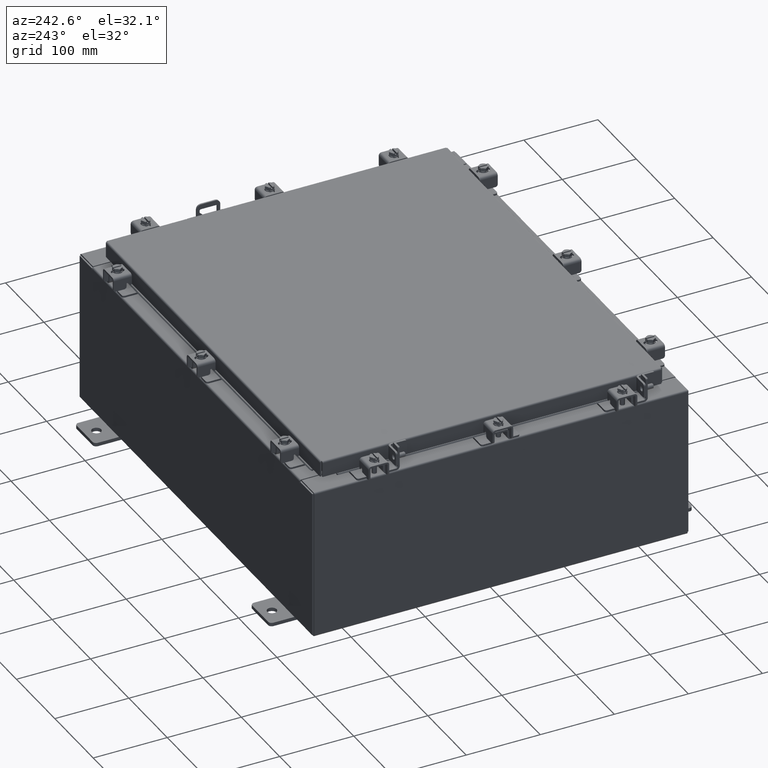
[diagram: clean part render]
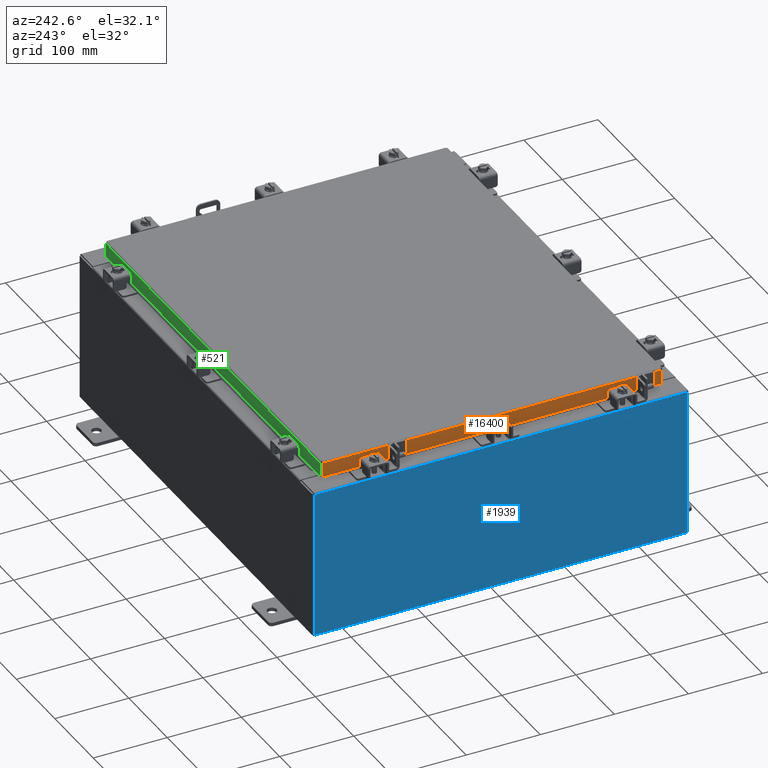
[diagram: same view with three faces highlighted in distinct colors, each labeled with its STEP entity id]
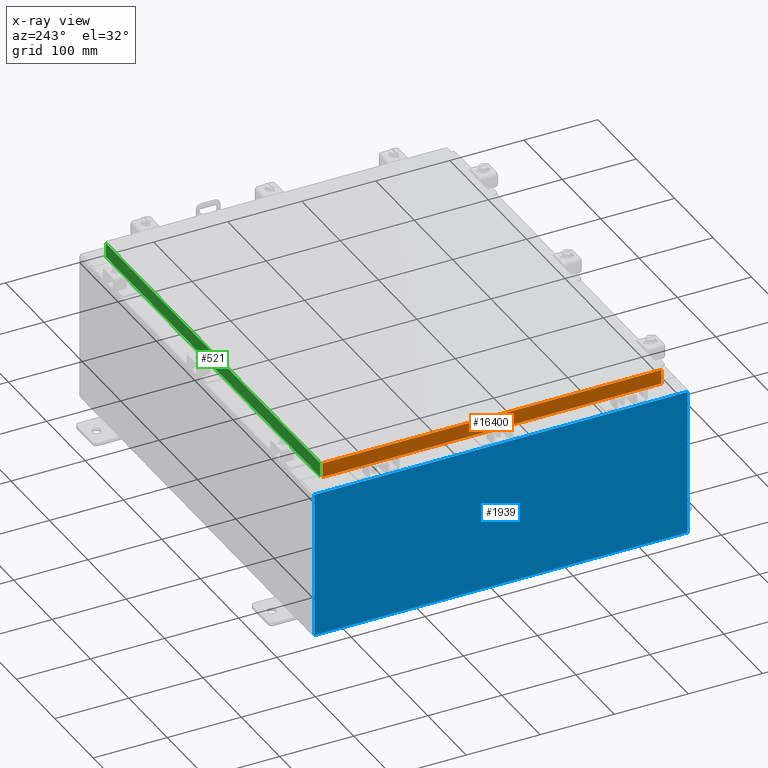
[diagram: x-ray of the same camera — body ghosted, the three highlighted faces saturated]
A machine part, auxiliary view with three faces highlighted in distinct colors.
The next image is the same camera in x-ray (body ghosted, the three faces saturated) — at least one of them is partly hidden behind the body in this view.
Their STEP definitions:

[orange] entity #16400 — the highlighted planar face has unit normal (1, 0, -0).
#255 = ORIENTED_EDGE ( 'NONE', *, *, #4518, .F. ) ;
#440 = AXIS2_PLACEMENT_3D ( 'NONE', #10978, #16217, #5764 ) ;
#517 = PLANE ( 'NONE',  #440 ) ;
#627 = DIRECTION ( 'NONE',  ( -2.818880942772360100E-015, 6.982962677686265900E-015, -1.000000000000000000 ) ) ;
#1144 = EDGE_CURVE ( 'NONE', #1811, #8649, #17397, .T. ) ;
#1471 = CARTESIAN_POINT ( 'NONE',  ( -11.07799999999999900, -8.255157864376263500, -0.8500000000000028600 ) ) ;
#1579 = CARTESIAN_POINT ( 'NONE',  ( -11.07799999999999900, -8.255157864376263500, -0.8500000000000028600 ) ) ;
#1811 = VERTEX_POINT ( 'NONE', #10610 ) ;
#1998 = ORIENTED_EDGE ( 'NONE', *, *, #2002, .F. ) ;
#2002 = EDGE_CURVE ( 'NONE', #8649, #21405, #20650, .T. ) ;
#2373 = DIRECTION ( 'NONE',  ( 4.379057701015054300E-047, 1.000000000000000000, 1.201604571657912400E-016 ) ) ;
#3364 = VERTEX_POINT ( 'NONE', #1579 ) ;
#3969 = CARTESIAN_POINT ( 'NONE',  ( -11.07799999999999800, -9.005157864376267100, -0.07469999999999978000 ) ) ;
#4017 = CARTESIAN_POINT ( 'NONE',  ( -11.07799999999999900, 9.005157864376274200, -0.8499999999999975400 ) ) ;
#4119 = CARTESIAN_POINT ( 'NONE',  ( -11.07799999999999900, -9.093999999999999400, -0.8499999999999996400 ) ) ;
#4518 = EDGE_CURVE ( 'NONE', #21405, #3364, #6624, .T. ) ;
#4867 = EDGE_CURVE ( 'NONE', #3364, #13296, #10992, .T. ) ;
#5764 = DIRECTION ( 'NONE',  ( -2.818880942772360100E-015, 0.0000000000000000000, -1.000000000000000000 ) ) ;
#6000 = EDGE_CURVE ( 'NONE', #1811, #10412, #9313, .T. ) ;
#6286 = CARTESIAN_POINT ( 'NONE',  ( -11.07799999999999900, -9.093999999999999400, -0.8499999999999996400 ) ) ;
#6624 = LINE ( 'NONE', #4119, #20004 ) ;
#7523 = VECTOR ( 'NONE', #16753, 39.37007874015748100 ) ;
#7632 = EDGE_CURVE ( 'NONE', #13296, #10412, #21436, .T. ) ;
#7831 = VECTOR ( 'NONE', #18748, 39.37007874015748100 ) ;
#8526 = CARTESIAN_POINT ( 'NONE',  ( -11.07799999999999800, -9.005157864376265300, -0.08770000000000007000 ) ) ;
#8649 = VERTEX_POINT ( 'NONE', #8526 ) ;
#9313 = LINE ( 'NONE', #14600, #13417 ) ;
#9718 = ORIENTED_EDGE ( 'NONE', *, *, #6000, .T. ) ;
#10092 = DIRECTION ( 'NONE',  ( 3.387180227794633400E-031, -1.000000000000000000, -9.232666117091638000E-046 ) ) ;
#10142 = FACE_OUTER_BOUND ( 'NONE', #12691, .T. ) ;
#10160 = DIRECTION ( 'NONE',  ( -0.0000000000000000000, 1.000000000000000000, -0.0000000000000000000 ) ) ;
#10337 = CARTESIAN_POINT ( 'NONE',  ( -11.07799999999999900, -9.005157864376261800, -0.8499999999999996400 ) ) ;
#10412 = VERTEX_POINT ( 'NONE', #4017 ) ;
#10610 = CARTESIAN_POINT ( 'NONE',  ( -11.07799999999999800, 9.005157864376270600, -0.08770000000000007000 ) ) ;
#10978 = CARTESIAN_POINT ( 'NONE',  ( -11.07799999999999800, -3.752318256350894000E-030, 3.148837674004378400E-014 ) ) ;
#10992 = LINE ( 'NONE', #1471, #19173 ) ;
#11299 = ORIENTED_EDGE ( 'NONE', *, *, #7632, .F. ) ;
#12691 = EDGE_LOOP ( 'NONE', ( #19156, #9718, #11299, #22106, #255, #1998 ) ) ;
#12782 = VECTOR ( 'NONE', #10092, 39.37007874015748100 ) ;
#13296 = VERTEX_POINT ( 'NONE', #16604 ) ;
#13417 = VECTOR ( 'NONE', #627, 39.37007874015748100 ) ;
#14600 = CARTESIAN_POINT ( 'NONE',  ( -11.07799999999999800, 9.005157864376270600, 9.437105801365624700E-014 ) ) ;
#16217 = DIRECTION ( 'NONE',  ( 1.000000000000000000, 3.387180227794633400E-031, -2.818880942772360100E-015 ) ) ;
#16400 = ADVANCED_FACE ( 'NONE', ( #10142 ), #517, .F. ) ;
#16604 = CARTESIAN_POINT ( 'NONE',  ( -11.07799999999999900, 8.255157864376267100, -0.8500000000000028600 ) ) ;
#16753 = DIRECTION ( 'NONE',  ( 4.379057701015054300E-047, 1.000000000000000000, 1.201604571657912400E-016 ) ) ;
#17397 = LINE ( 'NONE', #22007, #12782 ) ;
#18748 = DIRECTION ( 'NONE',  ( -2.818880942772360100E-015, 6.982962677686265900E-015, -1.000000000000000000 ) ) ;
#19156 = ORIENTED_EDGE ( 'NONE', *, *, #1144, .F. ) ;
#19173 = VECTOR ( 'NONE', #10160, 39.37007874015748100 ) ;
#20004 = VECTOR ( 'NONE', #2373, 39.37007874015748100 ) ;
#20650 = LINE ( 'NONE', #3969, #7831 ) ;
#21405 = VERTEX_POINT ( 'NONE', #10337 ) ;
#21436 = LINE ( 'NONE', #6286, #7523 ) ;
#22007 = CARTESIAN_POINT ( 'NONE',  ( -11.07799999999999800, -9.093999999999999400, -0.08770000000000007000 ) ) ;
#22106 = ORIENTED_EDGE ( 'NONE', *, *, #4867, .F. ) ;

[blue] entity #1939 — the highlighted planar face has unit normal (1, 0, 0).
#231 = DIRECTION ( 'NONE',  ( -3.584876173029202900E-015, -2.757597056176310300E-016, 1.000000000000000000 ) ) ;
#403 = CARTESIAN_POINT ( 'NONE',  ( -12.00000000000003200, -9.925300000000000000, 7.837599999999999200 ) ) ;
#538 = DIRECTION ( 'NONE',  ( 3.584876173029202900E-015, 2.757597056176310300E-016, -1.000000000000000000 ) ) ;
#653 = CARTESIAN_POINT ( 'NONE',  ( -12.00000000000003200, -9.925300000000000000, 7.837599999999999200 ) ) ;
#902 = VERTEX_POINT ( 'NONE', #403 ) ;
#1250 = ORIENTED_EDGE ( 'NONE', *, *, #20825, .F. ) ;
#1939 = ADVANCED_FACE ( 'NONE', ( #9482 ), #8670, .F. ) ;
#2220 = ORIENTED_EDGE ( 'NONE', *, *, #12260, .T. ) ;
#2845 = VECTOR ( 'NONE', #538, 39.37007874015748100 ) ;
#3022 = EDGE_CURVE ( 'NONE', #902, #15559, #9958, .T. ) ;
#5899 = DIRECTION ( 'NONE',  ( 0.0000000000000000000, 1.000000000000000000, 0.0000000000000000000 ) ) ;
#7451 = LINE ( 'NONE', #9239, #2845 ) ;
#8120 = ORIENTED_EDGE ( 'NONE', *, *, #11668, .T. ) ;
#8670 = PLANE ( 'NONE',  #22512 ) ;
#9239 = CARTESIAN_POINT ( 'NONE',  ( -12.00000000000000400, 9.925300000000000000, -4.054232992619534800E-014 ) ) ;
#9482 = FACE_OUTER_BOUND ( 'NONE', #10704, .T. ) ;
#9517 = CARTESIAN_POINT ( 'NONE',  ( -12.00000000000000400, 9.925300000000000000, 0.01299999999999983600 ) ) ;
#9958 = LINE ( 'NONE', #653, #18686 ) ;
#10131 = DIRECTION ( 'NONE',  ( 3.584876173029202900E-015, 0.0000000000000000000, -1.000000000000000000 ) ) ;
#10515 = VERTEX_POINT ( 'NONE', #19944 ) ;
#10704 = EDGE_LOOP ( 'NONE', ( #13314, #8120, #1250, #2220 ) ) ;
#11574 = LINE ( 'NONE', #14179, #15636 ) ;
#11668 = EDGE_CURVE ( 'NONE', #15559, #22411, #7451, .T. ) ;
#12260 = EDGE_CURVE ( 'NONE', #10515, #902, #11574, .T. ) ;
#12330 = DIRECTION ( 'NONE',  ( -0.0000000000000000000, 1.000000000000000000, -0.0000000000000000000 ) ) ;
#12718 = LINE ( 'NONE', #19277, #21412 ) ;
#13314 = ORIENTED_EDGE ( 'NONE', *, *, #3022, .T. ) ;
#14179 = CARTESIAN_POINT ( 'NONE',  ( -12.00000000000000400, -9.925300000000000000, -4.601632553852869700E-014 ) ) ;
#15559 = VERTEX_POINT ( 'NONE', #16773 ) ;
#15636 = VECTOR ( 'NONE', #231, 39.37007874015748100 ) ;
#16773 = CARTESIAN_POINT ( 'NONE',  ( -12.00000000000003200, 9.925299999999996500, 7.837599999999999200 ) ) ;
#16899 = DIRECTION ( 'NONE',  ( 1.000000000000000000, 0.0000000000000000000, 3.584876173029202900E-015 ) ) ;
#18686 = VECTOR ( 'NONE', #5899, 39.37007874015748100 ) ;
#18855 = CARTESIAN_POINT ( 'NONE',  ( -12.00000000000000400, 0.0000000000000000000, -4.327932773236202500E-014 ) ) ;
#19277 = CARTESIAN_POINT ( 'NONE',  ( -12.00000000000000400, 9.925299999999998200, 0.01299999999999984700 ) ) ;
#19944 = CARTESIAN_POINT ( 'NONE',  ( -12.00000000000000400, -9.925299999999998200, 0.01299999999999984700 ) ) ;
#20825 = EDGE_CURVE ( 'NONE', #10515, #22411, #12718, .T. ) ;
#21412 = VECTOR ( 'NONE', #12330, 39.37007874015748100 ) ;
#22411 = VERTEX_POINT ( 'NONE', #9517 ) ;
#22512 = AXIS2_PLACEMENT_3D ( 'NONE', #18855, #16899, #10131 ) ;

[green] entity #521 — the highlighted planar face has unit normal (0, -1, -0).
#430 = VERTEX_POINT ( 'NONE', #9192 ) ;
#462 = CARTESIAN_POINT ( 'NONE',  ( 10.98915786437627200, 9.094000000000003000, -0.8499999999999996400 ) ) ;
#521 = ADVANCED_FACE ( 'NONE', ( #1080 ), #20627, .F. ) ;
#873 = AXIS2_PLACEMENT_3D ( 'NONE', #5878, #2410, #22145 ) ;
#1080 = FACE_OUTER_BOUND ( 'NONE', #21671, .T. ) ;
#1553 = DIRECTION ( 'NONE',  ( -0.0000000000000000000, 2.818880942772350300E-015, -1.000000000000000000 ) ) ;
#2410 = DIRECTION ( 'NONE',  ( 3.475696988576941300E-031, -1.000000000000000000, -2.818880942772350300E-015 ) ) ;
#2902 = ORIENTED_EDGE ( 'NONE', *, *, #8280, .F. ) ;
#3557 = VECTOR ( 'NONE', #20711, 39.37007874015748100 ) ;
#4098 = CARTESIAN_POINT ( 'NONE',  ( -11.07799999999999800, 9.094000000000003000, -0.8500000000000024200 ) ) ;
#4508 = DIRECTION ( 'NONE',  ( -1.000000000000000000, -4.865975784007719100E-031, 4.932023819578018100E-017 ) ) ;
#4996 = VECTOR ( 'NONE', #11966, 39.37007874015748100 ) ;
#5662 = DIRECTION ( 'NONE',  ( 0.0000000000000000000, 2.818880942772350300E-015, -1.000000000000000000 ) ) ;
#5855 = VECTOR ( 'NONE', #19815, 39.37007874015748100 ) ;
#5878 = CARTESIAN_POINT ( 'NONE',  ( -3.160798841411870900E-030, 9.094000000000001200, 2.589571694958333800E-014 ) ) ;
#6702 = CARTESIAN_POINT ( 'NONE',  ( -10.98915786437626700, 9.094000000000001200, -0.07469999999999978000 ) ) ;
#6863 = LINE ( 'NONE', #13214, #20254 ) ;
#7145 = CARTESIAN_POINT ( 'NONE',  ( -10.98915786437626500, 9.094000000000001200, -0.08770000000000061100 ) ) ;
#7380 = VECTOR ( 'NONE', #1553, 39.37007874015748100 ) ;
#8280 = EDGE_CURVE ( 'NONE', #8540, #15340, #10544, .T. ) ;
#8305 = CARTESIAN_POINT ( 'NONE',  ( 10.23915786437627100, 9.093999999999994100, -0.8500000000000028600 ) ) ;
#8540 = VERTEX_POINT ( 'NONE', #8305 ) ;
#8754 = LINE ( 'NONE', #18981, #3557 ) ;
#9192 = CARTESIAN_POINT ( 'NONE',  ( 10.98915786437627200, 9.094000000000001200, -0.08770000000000115200 ) ) ;
#9400 = ORIENTED_EDGE ( 'NONE', *, *, #12665, .F. ) ;
#9640 = LINE ( 'NONE', #22377, #4996 ) ;
#10544 = LINE ( 'NONE', #4098, #5855 ) ;
#10832 = VERTEX_POINT ( 'NONE', #12033 ) ;
#11522 = LINE ( 'NONE', #6702, #7380 ) ;
#11966 = DIRECTION ( 'NONE',  ( 1.000000000000000000, -4.379057701015054300E-047, 1.233005954894504400E-016 ) ) ;
#12033 = CARTESIAN_POINT ( 'NONE',  ( -10.23915786437626700, 9.093999999999994100, -0.8500000000000028600 ) ) ;
#12665 = EDGE_CURVE ( 'NONE', #18878, #10832, #9640, .T. ) ;
#13214 = CARTESIAN_POINT ( 'NONE',  ( -11.07799999999999800, 9.094000000000001200, -0.08770000000000007000 ) ) ;
#13663 = VECTOR ( 'NONE', #5662, 39.37007874015748100 ) ;
#13666 = ORIENTED_EDGE ( 'NONE', *, *, #15529, .F. ) ;
#14497 = CARTESIAN_POINT ( 'NONE',  ( -10.98915786437626700, 9.094000000000003000, -0.8500000000000024200 ) ) ;
#15340 = VERTEX_POINT ( 'NONE', #462 ) ;
#15529 = EDGE_CURVE ( 'NONE', #430, #17344, #6863, .T. ) ;
#16091 = EDGE_CURVE ( 'NONE', #17344, #18878, #11522, .T. ) ;
#16746 = EDGE_CURVE ( 'NONE', #10832, #8540, #8754, .T. ) ;
#17007 = EDGE_CURVE ( 'NONE', #430, #15340, #18282, .T. ) ;
#17344 = VERTEX_POINT ( 'NONE', #7145 ) ;
#18075 = ORIENTED_EDGE ( 'NONE', *, *, #17007, .T. ) ;
#18282 = LINE ( 'NONE', #21295, #13663 ) ;
#18878 = VERTEX_POINT ( 'NONE', #14497 ) ;
#18981 = CARTESIAN_POINT ( 'NONE',  ( -10.23915786437626700, 9.093999999999994100, -0.8500000000000028600 ) ) ;
#19125 = ORIENTED_EDGE ( 'NONE', *, *, #16091, .F. ) ;
#19815 = DIRECTION ( 'NONE',  ( 1.000000000000000000, -4.379057701015054300E-047, 1.233005954894504400E-016 ) ) ;
#20254 = VECTOR ( 'NONE', #4508, 39.37007874015748100 ) ;
#20627 = PLANE ( 'NONE',  #873 ) ;
#20711 = DIRECTION ( 'NONE',  ( 1.000000000000000000, -0.0000000000000000000, -0.0000000000000000000 ) ) ;
#21295 = CARTESIAN_POINT ( 'NONE',  ( 10.98915786437627200, 9.094000000000001200, 2.589571694958333800E-014 ) ) ;
#21433 = ORIENTED_EDGE ( 'NONE', *, *, #16746, .F. ) ;
#21671 = EDGE_LOOP ( 'NONE', ( #13666, #18075, #2902, #21433, #9400, #19125 ) ) ;
#22145 = DIRECTION ( 'NONE',  ( 0.0000000000000000000, 2.818880942772350300E-015, -1.000000000000000000 ) ) ;
#22377 = CARTESIAN_POINT ( 'NONE',  ( -11.07799999999999800, 9.094000000000003000, -0.8500000000000024200 ) ) ;